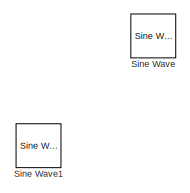
[diagram: root canvas - part 1/3, top left region]
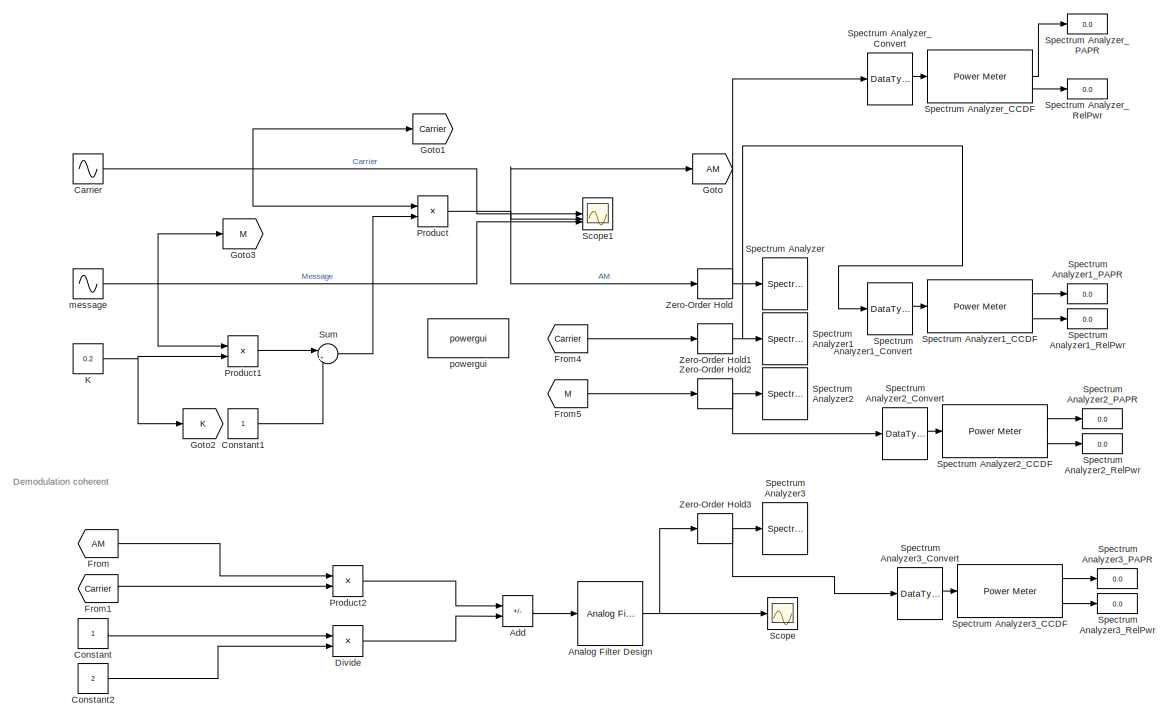
[diagram: root canvas - part 2/3, middle right region]
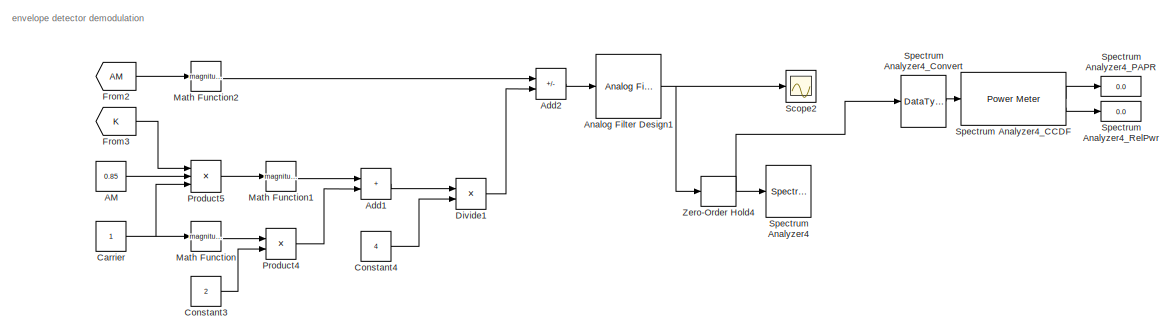
[diagram: root canvas - part 3/3, bottom right region]
MODEL slx_a86a8c95ed10
KIND model
CONFIG AbsTol = auto
CONFIG EnableMultiTasking = off
CONFIG FixedStep = auto
CONFIG MaxStep = auto
CONFIG MinStep = auto
CONFIG RelTol = auto
CONFIG SampleTimeConstraint = Unconstrained
CONFIG SolverName = VariableStepAuto
CONFIG StartTime = 0.0
CONFIG StopTime = 2
BLOCK [Constant] AM 
  Value = 0.85
BLOCK [Sum] Add
  IconShape = rectangular
  Inputs = +-
BLOCK [Sum] Add1
  IconShape = rectangular
BLOCK [Sum] Add2
  IconShape = rectangular
  Inputs = +-
BLOCK [Reference] Analog Filter Design  REF=dspfdesign/Analog
Filter Design
  SourceBlock = dspfdesign/Analog\nFilter Design
  SourceType = Analog Filter Design
BLOCK [Reference] Analog Filter Design1  REF=dspfdesign/Analog
Filter Design
  SourceBlock = dspfdesign/Analog\nFilter Design
  SourceType = Analog Filter Design
BLOCK [Sin] Carrier
  Frequency = pi*2*15000
  SampleTime = 0
BLOCK [Constant] Carrier 
BLOCK [Constant] Constant
BLOCK [Constant] Constant1
BLOCK [Constant] Constant2
  Value = 2
BLOCK [Constant] Constant3
  Value = 2
BLOCK [Constant] Constant4
  Value = 4
BLOCK [Product] Divide
  Inputs = */
BLOCK [Product] Divide1
  Inputs = */
BLOCK [From] From
  GotoTag = AM
BLOCK [From] From1
  GotoTag = Carrier
BLOCK [From] From2
  GotoTag = AM
BLOCK [From] From3
  GotoTag = K
BLOCK [From] From4
  GotoTag = Carrier
BLOCK [From] From5
  GotoTag = M
BLOCK [Goto] Goto
  GotoTag = AM
BLOCK [Goto] Goto1
  GotoTag = Carrier
BLOCK [Goto] Goto2
  GotoTag = K
BLOCK [Goto] Goto3
  GotoTag = M
BLOCK [Constant] K 
  Value = 0.2
BLOCK [Math] Math Function
  Operator = magnitude^2
  SignedPower = on
BLOCK [Math] Math Function1
  Operator = magnitude^2
  SignedPower = on
BLOCK [Math] Math Function2
  Operator = magnitude^2
  SignedPower = on
BLOCK [Product] Product
BLOCK [Product] Product1
BLOCK [Product] Product2
BLOCK [Product] Product4
BLOCK [Product] Product5
  Inputs = 3
BLOCK [Scope] Scope
  Floating = off
  NumInputPorts = 1
  ScopeSpecificationString = Simulink.scopes.TimeScopeBlockCfg('CurrentConfiguration', extmgr.ConfigurationSet(extmgr.Configuration('Core','General UI',true),extmgr.Configuration('Core','Source UI',true),extmgr.Configuration('Sources','WiredSimulink',true),extmgr.Configuration('Visuals','Time Domain',true,'SerializedDisplays',{struct('MinYLimReal','-1.60365','MaxYLimReal','1.6312','YLabelReal','','MinYLimMag','0.00000','MaxYL...<+1648ch>
BLOCK [Scope] Scope1
  Floating = off
  NumInputPorts = 3
  ScopeSpecificationString = Simulink.scopes.TimeScopeBlockCfg('CurrentConfiguration', extmgr.ConfigurationSet(extmgr.Configuration('Core','General UI',true,'FigureColor',[1 1 1]),extmgr.Configuration('Core','Source UI',true),extmgr.Configuration('Sources','WiredSimulink',true,'DataLoggingVariableName','ScopeData3','DataLoggingLimitDataPoints',true),extmgr.Configuration('Visuals','Time Domain',true,'InputProcessing','FramePro...<+3284ch>
BLOCK [Scope] Scope2
  Floating = off
  NumInputPorts = 1
  ScopeSpecificationString = Simulink.scopes.TimeScopeBlockCfg('CurrentConfiguration', extmgr.ConfigurationSet(extmgr.Configuration('Core','General UI',true),extmgr.Configuration('Core','Source UI',true),extmgr.Configuration('Sources','WiredSimulink',true,'DataLoggingVariableName','ScopeData1'),extmgr.Configuration('Visuals','Time Domain',true,'SerializedDisplays',{struct('MinYLimReal','-3.23702','MaxYLimReal','3.26137','YLab...<+1692ch>
BLOCK [Reference] Sine Wave  REF=dspsrcs4/Sine Wave
  SourceBlock = dspsrcs4/Sine Wave
  SourceType = Sine Wave
BLOCK [Reference] Sine Wave1  REF=dspsrcs4/Sine Wave
  SourceBlock = dspsrcs4/Sine Wave
  SourceType = Sine Wave
BLOCK [SpectrumAnalyzer] Spectrum Analyzer
  AllowFFTLengthLessThanSamplesPerUpdate = on
  AveragingMethod = Running
  AxesScaling = Manual
  DefaultConfigurationName = spbscopes.SpectrumAnalyzerBlockCfg
  FrequencyInputRBWFromPort = 0
  FrequencyInputRBWPort = 0
  FrequencyVectorFromPort = 0
  FrequencyVectorPort = 0
  GraphicalSettings = {"GraphicalSettings":{"Style":{"BackgroundColor":[0.12941176470588237,0.12941176470588237,0.12941176470588237],"AxesColor":[0,0,0],"LabelsColor":[0.6862745098039216,0.6862745098039216,0.6862745098039216],"PreserveColors":false,"Visible":[true],"LineStyle":["-"],"LineColor":[[1,0.9098039215686274,0.39215686274509803]],"LineWidth":[1],"Marker":["none"],"FontSize":"small"},"Cursors":{"Enabled":false,...<+966ch>  <repeated x4 — deduplicated; at blocks: Spectrum Analyzer, Spectrum Analyzer1, Spectrum Analyzer2, Spectrum Analyzer4>
  IsFrequencyInputMode = 0
  Method = Welch
  OpenAtSimulationStart = off
  SampleRate = 150000
  ScopeFrameLocation = window
  ScopeSpecificationString = spbscopes.SpectrumAnalyzerBlockCfg('CurrentConfiguration', extmgr.ConfigurationSet(extmgr.Configuration('Core','General UI',true),extmgr.Configuration('Core','Source UI',true),extmgr.Configuration('Sources','WiredSimulink',true),extmgr.Configuration('Visuals','Spectrum',true,'AxesProperties',struct('Color',{[0 0 0],[0 0 0]},'XColor',{[0.686274509803922 0.686274509803922 0.686274509803922],[0.68627...<+4483ch>
  SpectrumType = RMS
  SpectrumUnits = Vrms
  WasSavedAsWebScope = on
  WindowPosition = [0.000000,12.000000,1280.000000,697.000000,]
  YLimits = [-0.07839420767346499952,0.70554787523022177709]
BLOCK [SpectrumAnalyzer] Spectrum Analyzer1
  AllowFFTLengthLessThanSamplesPerUpdate = on
  AveragingMethod = Running
  AxesScaling = Manual
  DefaultConfigurationName = spbscopes.SpectrumAnalyzerBlockCfg
  FrequencyInputRBWFromPort = 0
  FrequencyInputRBWPort = 0
  FrequencyVectorFromPort = 0
  FrequencyVectorPort = 0
  IsFrequencyInputMode = 0
  Method = Welch
  OpenAtSimulationStart = off
  SampleRate = 150000
  ScopeFrameLocation = window
  ScopeSpecificationString = spbscopes.SpectrumAnalyzerBlockCfg('CurrentConfiguration', extmgr.ConfigurationSet(extmgr.Configuration('Core','General UI',true),extmgr.Configuration('Core','Source UI',true),extmgr.Configuration('Sources','WiredSimulink',true),extmgr.Configuration('Sources','SPTool',false),extmgr.Configuration('Sources','File',false),extmgr.Configuration('Sources','Workspace',false),extmgr.Configuration('Sources...<+4501ch>
  SelectedToolstripTab = spectrumAnalyzerToolstrip.measurementsTab
  SpectrumType = RMS
  SpectrumUnits = Vrms
  WasSavedAsWebScope = on
  WindowPosition = [0.000000,12.000000,1280.000000,697.000000,]
  YLimits = [-0.056311512071834490811,0.50680361749574887043]
BLOCK [Reference] Spectrum Analyzer1_CCDF  REF=dspstat3/Power Meter
  SourceBlock = dspstat3/Power Meter
  SourceType = dsp.simulink.PowerMeter
BLOCK [DataTypeConversion] Spectrum Analyzer1_Convert
  OutDataTypeStr = double
BLOCK [Display] Spectrum Analyzer1_PAPR
BLOCK [Display] Spectrum Analyzer1_RelPwr
BLOCK [SpectrumAnalyzer] Spectrum Analyzer2
  AllowFFTLengthLessThanSamplesPerUpdate = on
  AveragingMethod = Running
  AxesScaling = Manual
  DefaultConfigurationName = spbscopes.SpectrumAnalyzerBlockCfg
  FrequencyInputRBWFromPort = 0
  FrequencyInputRBWPort = 0
  FrequencyVectorFromPort = 0
  FrequencyVectorPort = 0
  IsFrequencyInputMode = 0
  Method = Welch
  OpenAtSimulationStart = off
  ScopeFrameLocation = window
  ScopeSpecificationString = spbscopes.SpectrumAnalyzerBlockCfg('CurrentConfiguration', extmgr.ConfigurationSet(extmgr.Configuration('Core','General UI',true),extmgr.Configuration('Core','Source UI',true),extmgr.Configuration('Sources','WiredSimulink',true),extmgr.Configuration('Sources','SPTool',false),extmgr.Configuration('Sources','File',false),extmgr.Configuration('Sources','Workspace',false),extmgr.Configuration('Sources...<+4557ch>
  SpectrumType = RMS
  SpectrumUnits = Vrms
  WasSavedAsWebScope = on
  WindowPosition = [0.000000,12.000000,1280.000000,697.000000,]
  YLimits = [-0.047864785114428973212,0.43078307242832725166]
BLOCK [Reference] Spectrum Analyzer2_CCDF  REF=dspstat3/Power Meter
  SourceBlock = dspstat3/Power Meter
  SourceType = dsp.simulink.PowerMeter
BLOCK [DataTypeConversion] Spectrum Analyzer2_Convert
  OutDataTypeStr = double
BLOCK [Display] Spectrum Analyzer2_PAPR
BLOCK [Display] Spectrum Analyzer2_RelPwr
BLOCK [SpectrumAnalyzer] Spectrum Analyzer3
  AllowFFTLengthLessThanSamplesPerUpdate = on
  AveragingMethod = Running
  AxesScaling = Manual
  DefaultConfigurationName = spbscopes.SpectrumAnalyzerBlockCfg
  FrequencyInputRBWFromPort = 0
  FrequencyInputRBWPort = 0
  FrequencyVectorFromPort = 0
  FrequencyVectorPort = 0
  GraphicalSettings = {"GraphicalSettings":{"Style":{"BackgroundColor":[1,1,1],"AxesColor":[1,1,1],"LabelsColor":[0.6862745098039216,0.6862745098039216,0.6862745098039216],"PreserveColors":false,"Visible":[true],"LineStyle":["-"],"LineColor":[[0.06666666666666667,0.44313725490196076,0.7450980392156863]],"LineWidth":[1],"Marker":["none"],"FontSize":"small"},"Cursors":{"Enabled":false,"XLocation":[-292.96875,292.96875],"...<+984ch>
  IsFrequencyInputMode = 0
  Method = Welch
  SampleRate = 150000
  ScopeFrameLocation = window
  ScopeSpecificationString = spbscopes.SpectrumAnalyzerBlockCfg('CurrentConfiguration', extmgr.ConfigurationSet(extmgr.Configuration('Core','General UI',true),extmgr.Configuration('Core','Source UI',true),extmgr.Configuration('Sources','WiredSimulink',true),extmgr.Configuration('Sources','SPTool',false),extmgr.Configuration('Sources','File',false),extmgr.Configuration('Sources','Workspace',false),extmgr.Configuration('Sources...<+4594ch>
  SpectrumType = RMS
  SpectrumUnits = Vrms
  WasSavedAsWebScope = on
  WindowPosition = [1.000000,1.000000,1280.000000,697.000000,]
  YLimits = [-0.6909096549460655,1.2100077452440468]
BLOCK [Reference] Spectrum Analyzer3_CCDF  REF=dspstat3/Power Meter
  SourceBlock = dspstat3/Power Meter
  SourceType = dsp.simulink.PowerMeter
BLOCK [DataTypeConversion] Spectrum Analyzer3_Convert
  OutDataTypeStr = double
BLOCK [Display] Spectrum Analyzer3_PAPR
BLOCK [Display] Spectrum Analyzer3_RelPwr
BLOCK [SpectrumAnalyzer] Spectrum Analyzer4
  AllowFFTLengthLessThanSamplesPerUpdate = on
  AveragingMethod = Running
  AxesScaling = Manual
  DefaultConfigurationName = spbscopes.SpectrumAnalyzerBlockCfg
  FrequencyInputRBWFromPort = 0
  FrequencyInputRBWPort = 0
  FrequencyVectorFromPort = 0
  FrequencyVectorPort = 0
  IsFrequencyInputMode = 0
  Method = Welch
  OpenAtSimulationStart = off
  SampleRate = 150000
  ScopeFrameLocation = window
  ScopeSpecificationString = spbscopes.SpectrumAnalyzerBlockCfg('CurrentConfiguration', extmgr.ConfigurationSet(extmgr.Configuration('Core','General UI',true),extmgr.Configuration('Core','Source UI',true),extmgr.Configuration('Sources','WiredSimulink',true),extmgr.Configuration('Sources','SPTool',false),extmgr.Configuration('Sources','File',false),extmgr.Configuration('Sources','Workspace',false),extmgr.Configuration('Sources...<+4543ch>
  SpectrumType = RMS
  SpectrumUnits = Vrms
  WasSavedAsWebScope = on
  WindowPosition = [1.000000,1.000000,1280.000000,697.000000,]
  YLimits = [-0.15352407908271434311,1.3817167119597739688]
BLOCK [Reference] Spectrum Analyzer4_CCDF  REF=dspstat3/Power Meter
  SourceBlock = dspstat3/Power Meter
  SourceType = dsp.simulink.PowerMeter
BLOCK [DataTypeConversion] Spectrum Analyzer4_Convert
  OutDataTypeStr = double
BLOCK [Display] Spectrum Analyzer4_PAPR
BLOCK [Display] Spectrum Analyzer4_RelPwr
BLOCK [Reference] Spectrum Analyzer_CCDF  REF=dspstat3/Power Meter
  SourceBlock = dspstat3/Power Meter
  SourceType = dsp.simulink.PowerMeter
BLOCK [DataTypeConversion] Spectrum Analyzer_Convert
  OutDataTypeStr = double
BLOCK [Display] Spectrum Analyzer_PAPR
BLOCK [Display] Spectrum Analyzer_RelPwr
BLOCK [Sum] Sum
  Inputs = |++
BLOCK [ZeroOrderHold] Zero-Order Hold
  SampleTime = 1/(10*15e3)
BLOCK [ZeroOrderHold] Zero-Order Hold1
  SampleTime = 1/(10*15e3)
BLOCK [ZeroOrderHold] Zero-Order Hold2
  SampleTime = 1/(10*1e3)
BLOCK [ZeroOrderHold] Zero-Order Hold3
  SampleTime = -1
BLOCK [ZeroOrderHold] Zero-Order Hold4
  SampleTime = -1
BLOCK [Sin] message 
  Amplitude = 0.85
  Frequency = pi*2*1000
  SampleTime = 0
BLOCK [Reference] powergui  REF=spspowerguiLib/powergui
  LibrarySourceBlock = sps_lib/powergui
  Priority = 1
  SourceBlock = spspowerguiLib/powergui
  SourceType = PSB option menu block
ANNOTATION (root): Demodulation coherent
ANNOTATION (root): envelope detector demodulation
LINE AM :1 -> Product5:2
LINE Add1:1 -> Divide1:1
LINE Add2:1 -> Analog Filter Design1:1
LINE Add:1 -> Analog Filter Design:1
NET Analog Filter Design1:1 -> Scope2:1, Zero-Order Hold4:1
NET Analog Filter Design:1 -> Scope:1, Zero-Order Hold3:1
NET Carrier :1 -> Math Function:1, Product5:3
NET Carrier:1 -> Goto1:1, Product:1, Scope1:1
LINE Constant1:1 -> Sum:2
LINE Constant2:1 -> Divide:2
LINE Constant3:1 -> Product4:2
LINE Constant4:1 -> Divide1:2
LINE Constant:1 -> Divide:1
LINE Divide1:1 -> Add2:2
LINE Divide:1 -> Add:2
LINE From1:1 -> Product2:2
LINE From2:1 -> Math Function2:1
LINE From3:1 -> Product5:1
LINE From4:1 -> Zero-Order Hold1:1
LINE From5:1 -> Zero-Order Hold2:1
LINE From:1 -> Product2:1
NET K :1 -> Goto2:1, Product1:2
LINE Math Function1:1 -> Add1:1
LINE Math Function2:1 -> Add2:1
LINE Math Function:1 -> Product4:1
LINE Product1:1 -> Sum:1
LINE Product2:1 -> Add:1
LINE Product4:1 -> Add1:2
LINE Product5:1 -> Math Function1:1
NET Product:1 -> Goto:1, Scope1:2, Zero-Order Hold:1
LINE Spectrum Analyzer1_CCDF:1 -> Spectrum Analyzer1_PAPR:1
LINE Spectrum Analyzer1_CCDF:2 -> Spectrum Analyzer1_RelPwr:1
LINE Spectrum Analyzer1_Convert:1 -> Spectrum Analyzer1_CCDF:1
LINE Spectrum Analyzer2_CCDF:1 -> Spectrum Analyzer2_PAPR:1
LINE Spectrum Analyzer2_CCDF:2 -> Spectrum Analyzer2_RelPwr:1
LINE Spectrum Analyzer2_Convert:1 -> Spectrum Analyzer2_CCDF:1
LINE Spectrum Analyzer3_CCDF:1 -> Spectrum Analyzer3_PAPR:1
LINE Spectrum Analyzer3_CCDF:2 -> Spectrum Analyzer3_RelPwr:1
LINE Spectrum Analyzer3_Convert:1 -> Spectrum Analyzer3_CCDF:1
LINE Spectrum Analyzer4_CCDF:1 -> Spectrum Analyzer4_PAPR:1
LINE Spectrum Analyzer4_CCDF:2 -> Spectrum Analyzer4_RelPwr:1
LINE Spectrum Analyzer4_Convert:1 -> Spectrum Analyzer4_CCDF:1
LINE Spectrum Analyzer_CCDF:1 -> Spectrum Analyzer_PAPR:1
LINE Spectrum Analyzer_CCDF:2 -> Spectrum Analyzer_RelPwr:1
LINE Spectrum Analyzer_Convert:1 -> Spectrum Analyzer_CCDF:1
LINE Sum:1 -> Product:2
NET Zero-Order Hold1:1 -> Spectrum Analyzer1:1, Spectrum Analyzer1_Convert:1
NET Zero-Order Hold2:1 -> Spectrum Analyzer2:1, Spectrum Analyzer2_Convert:1
NET Zero-Order Hold3:1 -> Spectrum Analyzer3:1, Spectrum Analyzer3_Convert:1
NET Zero-Order Hold4:1 -> Spectrum Analyzer4:1, Spectrum Analyzer4_Convert:1
NET Zero-Order Hold:1 -> Spectrum Analyzer:1, Spectrum Analyzer_Convert:1
NET message :1 -> Goto3:1, Product1:1, Scope1:3
note: NET lines group one-source signal fan-out (src -> all destinations, sorted); 1:1 wires keep LINE
